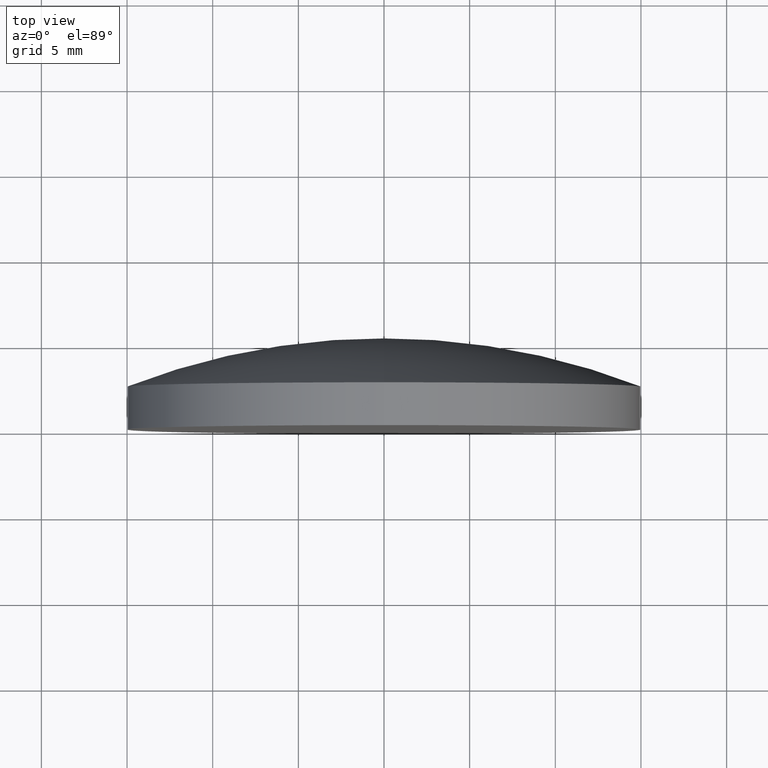
[diagram: clean part render]
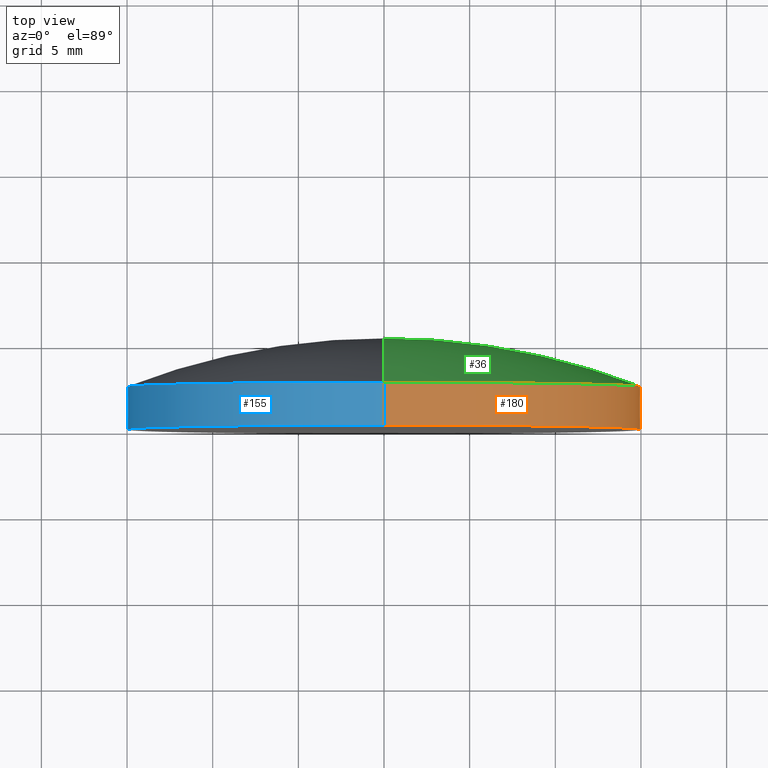
[diagram: same view with three faces highlighted in distinct colors, each labeled with its STEP entity id]
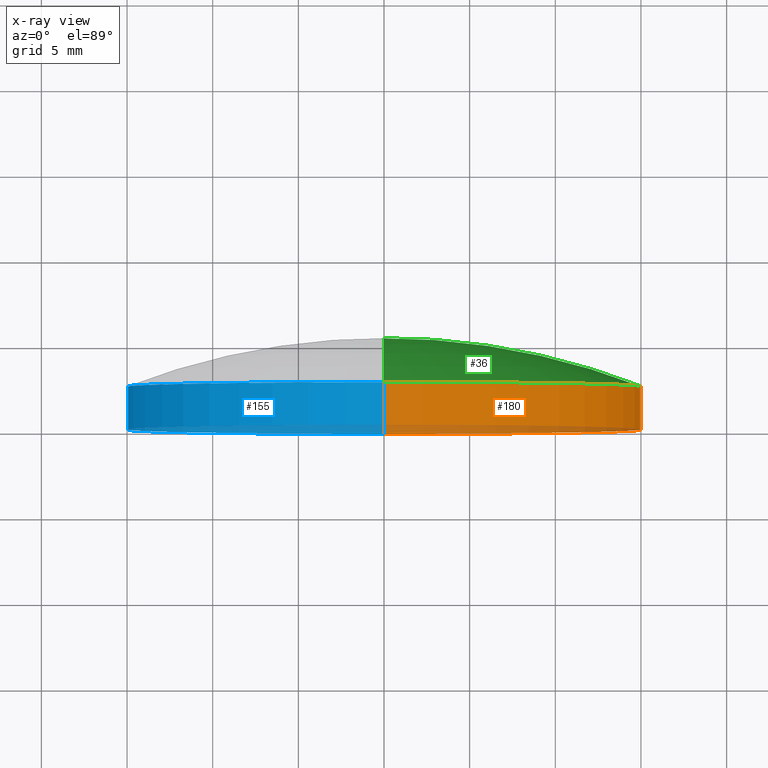
[diagram: x-ray of the same camera — body ghosted, the three highlighted faces saturated]
A machine part, top view with three faces highlighted in distinct colors.
The next image is the same camera in x-ray (body ghosted, the three faces saturated) — at least one of them is partly hidden behind the body in this view.
Their STEP definitions:

[orange] entity #180 — the highlighted cylindrical surface (partial cylindrical patch) has radius 15 mm, axis along (-0, 1, -0).
#3 = CARTESIAN_POINT ( 'NONE',  ( 0.000000000000000000, 2.499999999999996891, 14.99999999999999645 ) ) ;
#10 = CARTESIAN_POINT ( 'NONE',  ( 1.836970198721029589E-15, 5.320000000000000284, -15.00000000000000000 ) ) ;
#17 = DIRECTION ( 'NONE',  ( -0.000000000000000000, 1.000000000000000000, -0.000000000000000000 ) ) ;
#18 = CARTESIAN_POINT ( 'NONE',  ( 1.836970198721029589E-15, -1.734723475976807094E-15, -15.00000000000000000 ) ) ;
#30 = CARTESIAN_POINT ( 'NONE',  ( 1.836970198721029589E-15, 2.499999999999996891, -14.99999999999999645 ) ) ;
#32 = CARTESIAN_POINT ( 'NONE',  ( 0.000000000000000000, 2.499999999999998224, 0.000000000000000000 ) ) ;
#38 = EDGE_LOOP ( 'NONE', ( #70, #56, #101, #87 ) ) ;
#47 = DIRECTION ( 'NONE',  ( -0.000000000000000000, 1.000000000000000000, -0.000000000000000000 ) ) ;
#55 = AXIS2_PLACEMENT_3D ( 'NONE', #32, #93, #105 ) ;
#56 = ORIENTED_EDGE ( 'NONE', *, *, #74, .T. ) ;
#62 = AXIS2_PLACEMENT_3D ( 'NONE', #191, #17, #158 ) ;
#63 = CARTESIAN_POINT ( 'NONE',  ( 0.000000000000000000, -1.734723475976807094E-15, 0.000000000000000000 ) ) ;
#64 = CYLINDRICAL_SURFACE ( 'NONE', #62, 15.00000000000000000 ) ;
#66 = CIRCLE ( 'NONE', #137, 15.00000000000000000 ) ;
#70 = ORIENTED_EDGE ( 'NONE', *, *, #144, .T. ) ;
#73 = VERTEX_POINT ( 'NONE', #30 ) ;
#74 = EDGE_CURVE ( 'NONE', #132, #73, #150, .T. ) ;
#87 = ORIENTED_EDGE ( 'NONE', *, *, #135, .F. ) ;
#91 = LINE ( 'NONE', #171, #170 ) ;
#93 = DIRECTION ( 'NONE',  ( -0.000000000000000000, 1.000000000000000000, -0.000000000000000000 ) ) ;
#100 = VERTEX_POINT ( 'NONE', #102 ) ;
#101 = ORIENTED_EDGE ( 'NONE', *, *, #172, .F. ) ;
#102 = CARTESIAN_POINT ( 'NONE',  ( 0.000000000000000000, -1.734723475976807094E-15, 15.00000000000000000 ) ) ;
#105 = DIRECTION ( 'NONE',  ( 0.000000000000000000, 0.000000000000000000, 1.000000000000000000 ) ) ;
#115 = VERTEX_POINT ( 'NONE', #3 ) ;
#122 = DIRECTION ( 'NONE',  ( -0.000000000000000000, 1.000000000000000000, -0.000000000000000000 ) ) ;
#132 = VERTEX_POINT ( 'NONE', #18 ) ;
#135 = EDGE_CURVE ( 'NONE', #100, #115, #91, .T. ) ;
#137 = AXIS2_PLACEMENT_3D ( 'NONE', #63, #122, #157 ) ;
#144 = EDGE_CURVE ( 'NONE', #100, #132, #66, .T. ) ;
#150 = LINE ( 'NONE', #10, #184 ) ;
#157 = DIRECTION ( 'NONE',  ( 0.000000000000000000, 0.000000000000000000, 1.000000000000000000 ) ) ;
#158 = DIRECTION ( 'NONE',  ( 0.000000000000000000, 0.000000000000000000, 1.000000000000000000 ) ) ;
#170 = VECTOR ( 'NONE', #47, 1000.000000000000000 ) ;
#171 = CARTESIAN_POINT ( 'NONE',  ( 0.000000000000000000, 5.320000000000000284, 15.00000000000000000 ) ) ;
#172 = EDGE_CURVE ( 'NONE', #115, #73, #196, .T. ) ;
#174 = FACE_OUTER_BOUND ( 'NONE', #38, .T. ) ;
#179 = DIRECTION ( 'NONE',  ( -0.000000000000000000, 1.000000000000000000, -0.000000000000000000 ) ) ;
#180 = ADVANCED_FACE ( 'NONE', ( #174 ), #64, .T. ) ;
#184 = VECTOR ( 'NONE', #179, 1000.000000000000000 ) ;
#191 = CARTESIAN_POINT ( 'NONE',  ( 0.000000000000000000, 5.320000000000000284, 0.000000000000000000 ) ) ;
#196 = CIRCLE ( 'NONE', #55, 15.00000000000000000 ) ;

[blue] entity #155 — the highlighted cylindrical surface (partial cylindrical patch) has radius 15 mm, axis along (-0, 1, -0).
#3 = CARTESIAN_POINT ( 'NONE',  ( 0.000000000000000000, 2.499999999999996891, 14.99999999999999645 ) ) ;
#10 = CARTESIAN_POINT ( 'NONE',  ( 1.836970198721029589E-15, 5.320000000000000284, -15.00000000000000000 ) ) ;
#18 = CARTESIAN_POINT ( 'NONE',  ( 1.836970198721029589E-15, -1.734723475976807094E-15, -15.00000000000000000 ) ) ;
#20 = AXIS2_PLACEMENT_3D ( 'NONE', #50, #140, #78 ) ;
#23 = EDGE_CURVE ( 'NONE', #73, #115, #112, .T. ) ;
#27 = ORIENTED_EDGE ( 'NONE', *, *, #168, .T. ) ;
#30 = CARTESIAN_POINT ( 'NONE',  ( 1.836970198721029589E-15, 2.499999999999996891, -14.99999999999999645 ) ) ;
#41 = DIRECTION ( 'NONE',  ( 0.000000000000000000, 0.000000000000000000, 1.000000000000000000 ) ) ;
#45 = DIRECTION ( 'NONE',  ( -0.000000000000000000, 1.000000000000000000, -0.000000000000000000 ) ) ;
#47 = DIRECTION ( 'NONE',  ( -0.000000000000000000, 1.000000000000000000, -0.000000000000000000 ) ) ;
#49 = AXIS2_PLACEMENT_3D ( 'NONE', #152, #169, #41 ) ;
#50 = CARTESIAN_POINT ( 'NONE',  ( 0.000000000000000000, 5.320000000000000284, 0.000000000000000000 ) ) ;
#58 = CIRCLE ( 'NONE', #145, 15.00000000000000000 ) ;
#73 = VERTEX_POINT ( 'NONE', #30 ) ;
#74 = EDGE_CURVE ( 'NONE', #132, #73, #150, .T. ) ;
#78 = DIRECTION ( 'NONE',  ( 0.000000000000000000, 0.000000000000000000, 1.000000000000000000 ) ) ;
#81 = CYLINDRICAL_SURFACE ( 'NONE', #20, 15.00000000000000000 ) ;
#84 = EDGE_LOOP ( 'NONE', ( #131, #27, #181, #183 ) ) ;
#91 = LINE ( 'NONE', #171, #170 ) ;
#100 = VERTEX_POINT ( 'NONE', #102 ) ;
#102 = CARTESIAN_POINT ( 'NONE',  ( 0.000000000000000000, -1.734723475976807094E-15, 15.00000000000000000 ) ) ;
#106 = CARTESIAN_POINT ( 'NONE',  ( 0.000000000000000000, -1.734723475976807094E-15, 0.000000000000000000 ) ) ;
#112 = CIRCLE ( 'NONE', #49, 15.00000000000000000 ) ;
#115 = VERTEX_POINT ( 'NONE', #3 ) ;
#123 = DIRECTION ( 'NONE',  ( 0.000000000000000000, 0.000000000000000000, 1.000000000000000000 ) ) ;
#131 = ORIENTED_EDGE ( 'NONE', *, *, #74, .F. ) ;
#132 = VERTEX_POINT ( 'NONE', #18 ) ;
#135 = EDGE_CURVE ( 'NONE', #100, #115, #91, .T. ) ;
#140 = DIRECTION ( 'NONE',  ( -0.000000000000000000, 1.000000000000000000, -0.000000000000000000 ) ) ;
#145 = AXIS2_PLACEMENT_3D ( 'NONE', #106, #45, #123 ) ;
#150 = LINE ( 'NONE', #10, #184 ) ;
#152 = CARTESIAN_POINT ( 'NONE',  ( 0.000000000000000000, 2.499999999999998224, 0.000000000000000000 ) ) ;
#155 = ADVANCED_FACE ( 'NONE', ( #185 ), #81, .T. ) ;
#168 = EDGE_CURVE ( 'NONE', #132, #100, #58, .T. ) ;
#169 = DIRECTION ( 'NONE',  ( -0.000000000000000000, 1.000000000000000000, -0.000000000000000000 ) ) ;
#170 = VECTOR ( 'NONE', #47, 1000.000000000000000 ) ;
#171 = CARTESIAN_POINT ( 'NONE',  ( 0.000000000000000000, 5.320000000000000284, 15.00000000000000000 ) ) ;
#179 = DIRECTION ( 'NONE',  ( -0.000000000000000000, 1.000000000000000000, -0.000000000000000000 ) ) ;
#181 = ORIENTED_EDGE ( 'NONE', *, *, #135, .T. ) ;
#183 = ORIENTED_EDGE ( 'NONE', *, *, #23, .F. ) ;
#184 = VECTOR ( 'NONE', #179, 1000.000000000000000 ) ;
#185 = FACE_OUTER_BOUND ( 'NONE', #84, .T. ) ;

[green] entity #36 — the highlighted toroidal blend (fillet) surface has major radius 0.0007 mm and minor (blend) radius 41.3 mm.
#3 = CARTESIAN_POINT ( 'NONE',  ( 0.000000000000000000, 2.499999999999996891, 14.99999999999999645 ) ) ;
#11 = DIRECTION ( 'NONE',  ( 0.000000000000000000, 0.000000000000000000, 1.000000000000000000 ) ) ;
#14 = CARTESIAN_POINT ( 'NONE',  ( 0.000000000000000000, -35.97999999440191488, 0.000000000000000000 ) ) ;
#30 = CARTESIAN_POINT ( 'NONE',  ( 1.836970198721029589E-15, 2.499999999999996891, -14.99999999999999645 ) ) ;
#32 = CARTESIAN_POINT ( 'NONE',  ( 0.000000000000000000, 2.499999999999998224, 0.000000000000000000 ) ) ;
#36 = ADVANCED_FACE ( 'NONE', ( #167 ), #39, .T. ) ;
#39 = TOROIDAL_SURFACE ( 'NONE', #71, 0.0006800010524353472530, 41.29999999999999005 ) ;
#43 = DIRECTION ( 'NONE',  ( 1.224646799147353207E-16, 0.000000000000000000, -1.000000000000000000 ) ) ;
#53 = EDGE_CURVE ( 'NONE', #115, #57, #119, .T. ) ;
#55 = AXIS2_PLACEMENT_3D ( 'NONE', #32, #93, #105 ) ;
#57 = VERTEX_POINT ( 'NONE', #200 ) ;
#60 = CARTESIAN_POINT ( 'NONE',  ( 8.327611122817794886E-20, -35.97999999440191488, -0.0006800010524353472530 ) ) ;
#71 = AXIS2_PLACEMENT_3D ( 'NONE', #14, #75, #134 ) ;
#73 = VERTEX_POINT ( 'NONE', #30 ) ;
#75 = DIRECTION ( 'NONE',  ( -0.000000000000000000, 1.000000000000000000, -0.000000000000000000 ) ) ;
#86 = ORIENTED_EDGE ( 'NONE', *, *, #172, .T. ) ;
#93 = DIRECTION ( 'NONE',  ( -0.000000000000000000, 1.000000000000000000, -0.000000000000000000 ) ) ;
#98 = EDGE_CURVE ( 'NONE', #73, #57, #136, .T. ) ;
#105 = DIRECTION ( 'NONE',  ( 0.000000000000000000, 0.000000000000000000, 1.000000000000000000 ) ) ;
#114 = ORIENTED_EDGE ( 'NONE', *, *, #98, .T. ) ;
#115 = VERTEX_POINT ( 'NONE', #3 ) ;
#118 = DIRECTION ( 'NONE',  ( 1.000000000000000000, 0.000000000000000000, 1.224646799147353207E-16 ) ) ;
#119 = CIRCLE ( 'NONE', #165, 41.29999999999999005 ) ;
#130 = AXIS2_PLACEMENT_3D ( 'NONE', #60, #118, #43 ) ;
#134 = DIRECTION ( 'NONE',  ( 0.000000000000000000, 0.000000000000000000, 1.000000000000000000 ) ) ;
#136 = CIRCLE ( 'NONE', #130, 41.29999999999999005 ) ;
#165 = AXIS2_PLACEMENT_3D ( 'NONE', #176, #178, #11 ) ;
#167 = FACE_OUTER_BOUND ( 'NONE', #199, .T. ) ;
#172 = EDGE_CURVE ( 'NONE', #115, #73, #196, .T. ) ;
#176 = CARTESIAN_POINT ( 'NONE',  ( 0.000000000000000000, -35.97999999440191488, 0.0006800010524353472530 ) ) ;
#178 = DIRECTION ( 'NONE',  ( -1.000000000000000000, 0.000000000000000000, 0.000000000000000000 ) ) ;
#195 = ORIENTED_EDGE ( 'NONE', *, *, #53, .F. ) ;
#196 = CIRCLE ( 'NONE', #55, 15.00000000000000000 ) ;
#199 = EDGE_LOOP ( 'NONE', ( #86, #114, #195 ) ) ;
#200 = CARTESIAN_POINT ( 'NONE',  ( 0.000000000000000000, 5.320000000000000284, 0.000000000000000000 ) ) ;